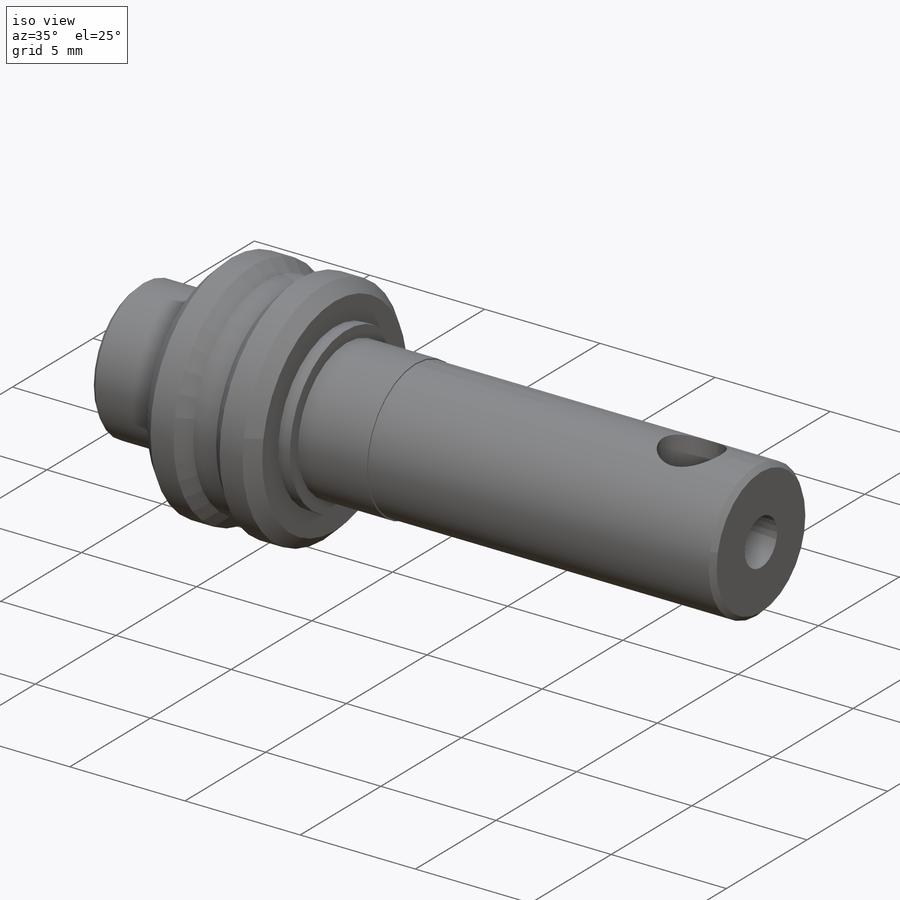
[diagram: iso view]
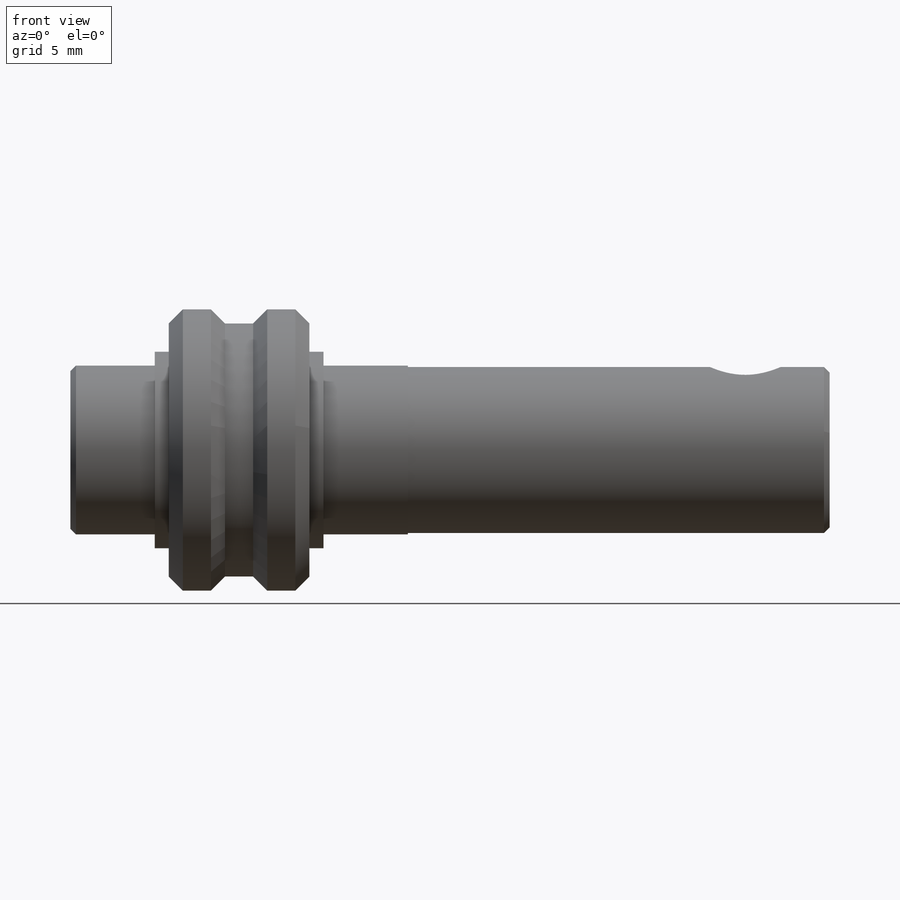
[diagram: front view]
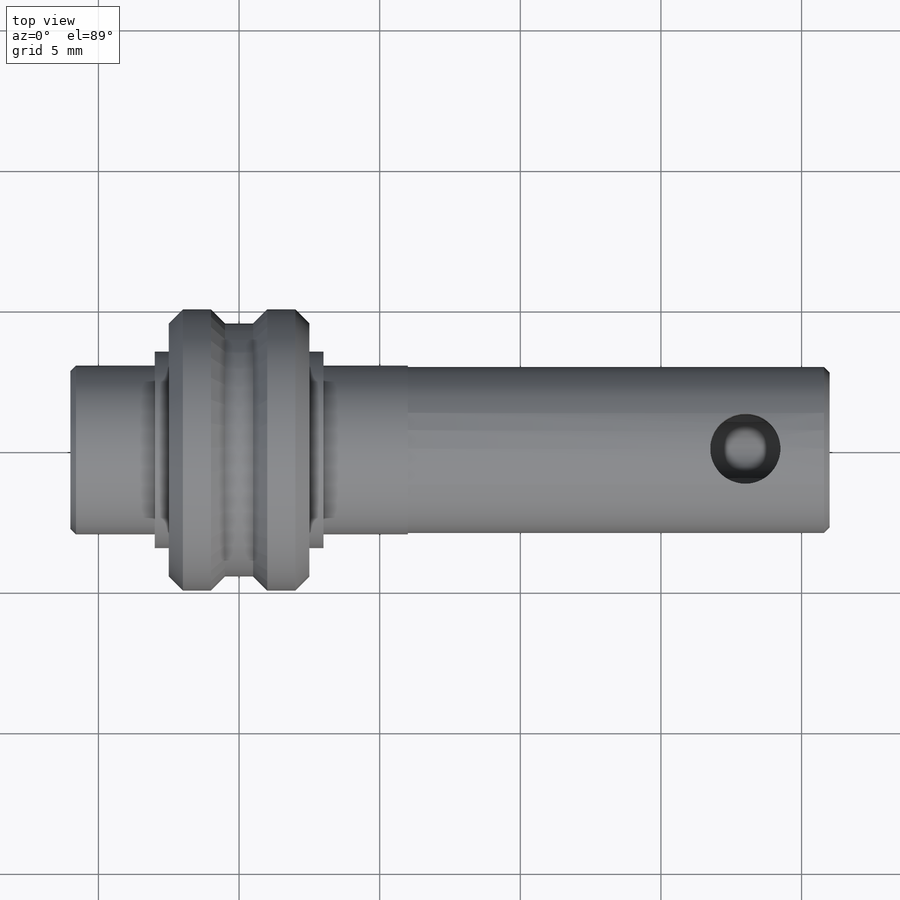
[diagram: top view]
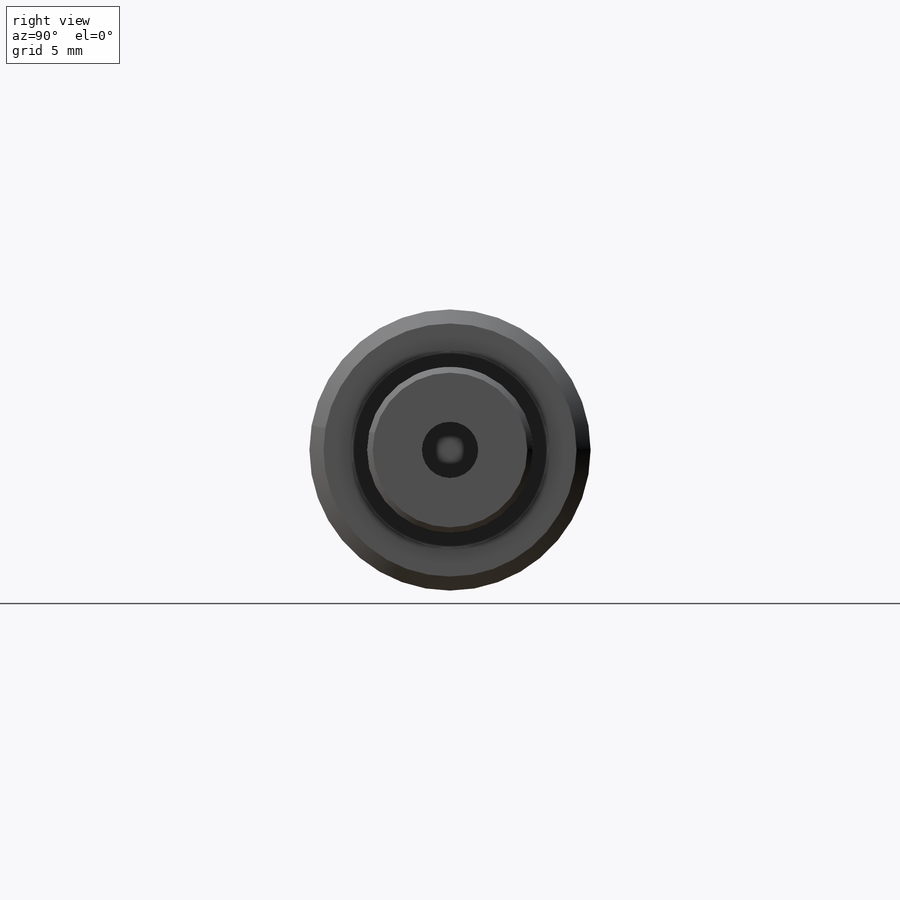
[diagram: right view]
SOLIDWORKS PART (.sldprt)
format: sldprt  version: not decoded by parser v0  size: 269,824 bytes
history: native  units: mm
features: plane x3, sketch x3, hole x2, material x1, revolve x1, chamfer x1 (+9 scaffold rows collapsed)
feature tree (20):
  scaffold x9  (default folders/planes/origin — collapsed)
  material  "1.4003 (X2CrNi12)"
  plane  "Ebene vorne"
  plane  "Ebene oben"
  plane  "Ebene rechts"
  sketch  "Skizze1"  dims[c1.D1=6.0mm c1.D2=5.0mm c1.D3=10.0mm c1.D4=2.0mm c1.D5=6.0mm c1.D6=0.5mm c1.D7=3.0mm c1.D8=2.0mm c1.D9=10.0mm c1.D10=8.0mm c2.D4=9.0mm c2.D11=2.0mm c2.D2=0.5mm c2.D10=18.0mm c2.D12=5.9mm]
  revolve  "Rotation1"  Angle=360deg
  chamfer  "Fase1"  Distance=0.5mm Angle=45deg
  hole  "M3 Gewindebohrung1"  Diameter=2.5mm Depth=3mm
  sketch  "3D-Skizze1"  dims[D1=3.0mm]
  sketch  "Skizze3"  dims[hole-wizard template sketch: 47 standard entries collapsed; hole parameters kept: c15.Bohrungstiefe=3.0mm c15.D3=~14.816244mm c15.Spitzenwinkel=118.0deg]
  hole  "Fase2"  Diameter=0.2mm
decode coverage: 7 of 7 modeling features carry decoded parameters
note: ~ marks probable driven/reference dimensions
note: suppression state not decoded; provenance and decode notes live in map.json
